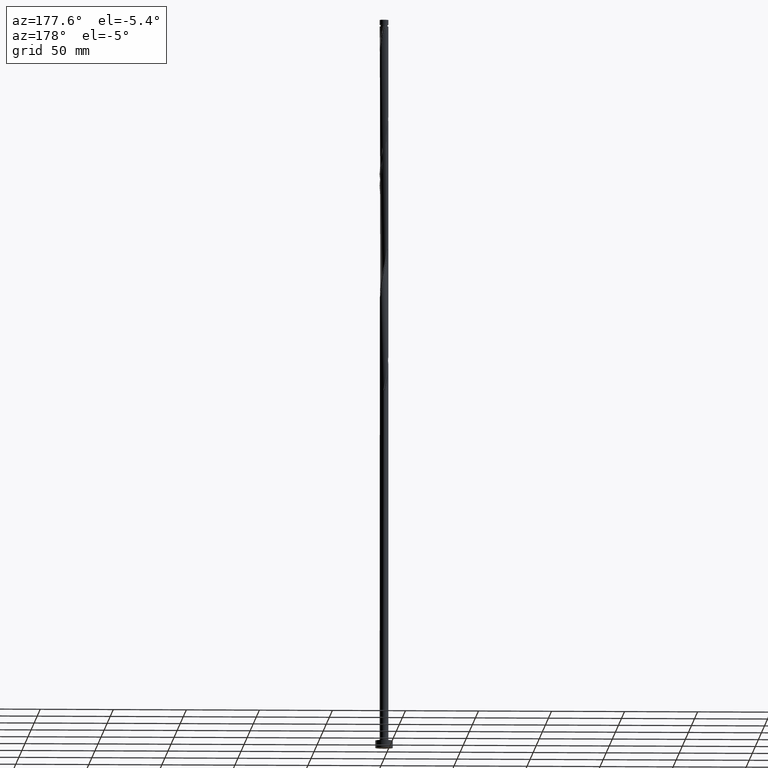
[diagram: clean part render]
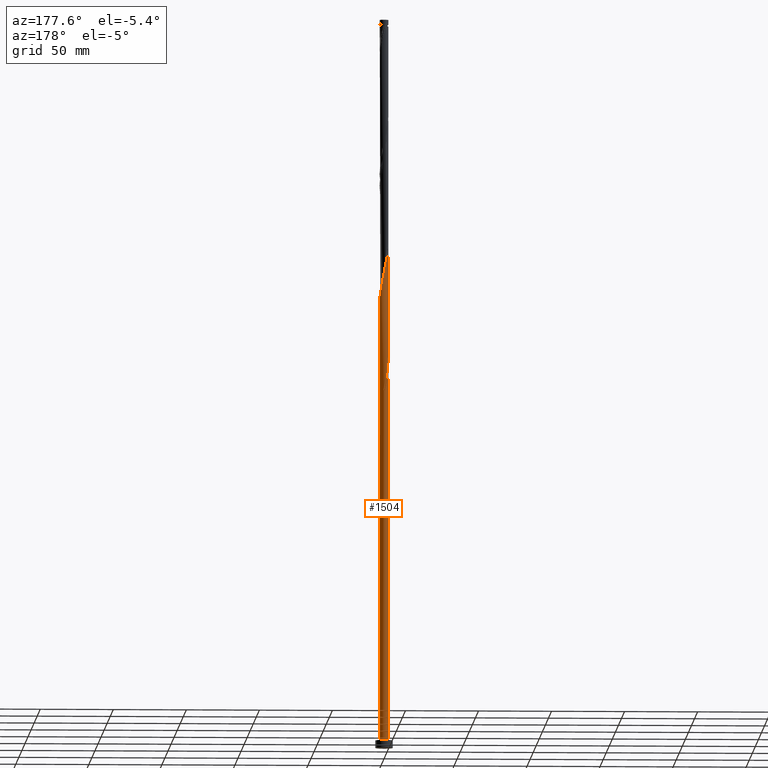
[diagram: same view with one face highlighted and labeled with its STEP entity id]
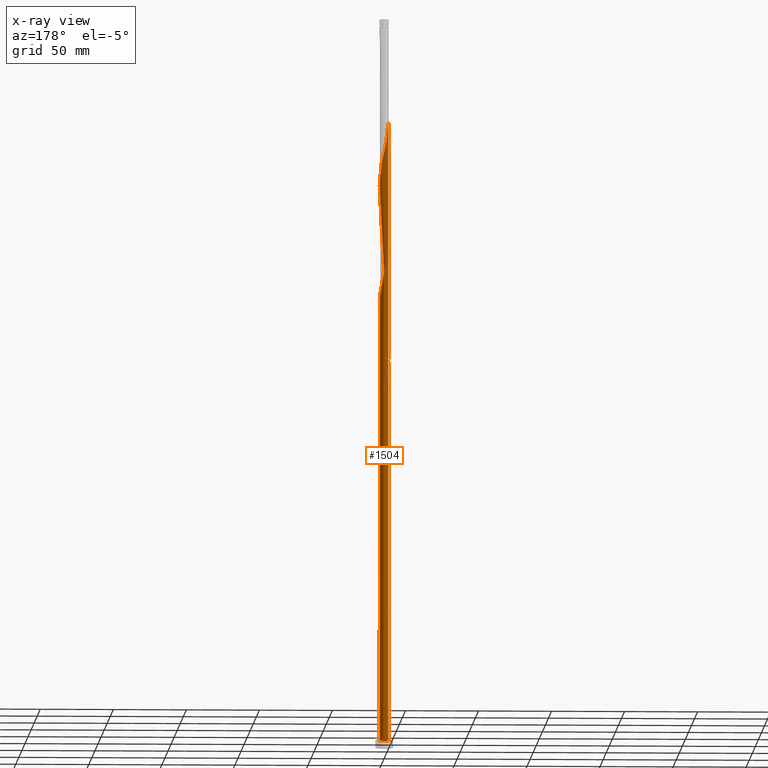
[diagram: x-ray of the same camera — body ghosted, the highlighted face saturated]
A machine part, auxiliary view. The second image highlights one B-rep face of the part: STEP entity #1504.
The next image is the same camera in x-ray: the body ghosted, the highlighted face saturated — about 0% of this face is hidden behind the body in this view.
In plain terms, the highlighted cylindrical surface (bore or boss wall) has radius 3 mm, axis along (-0, -0, -1).
Its self-contained STEP definition (entity closure, byte-faithful):
#2 = CARTESIAN_POINT ( 'NONE',  ( -2.129757576223803905, 2.112849418798542711, 419.9851471103912104 ) ) ;
#9 = ORIENTED_EDGE ( 'NONE', *, *, #1571, .F. ) ;
#11 = CARTESIAN_POINT ( 'NONE',  ( -2.881201374597971210, 0.8865571881340400529, 265.0372304437244679 ) ) ;
#15 = CARTESIAN_POINT ( 'NONE',  ( -0.5969924622639765088, 2.940000000000003499, 412.1726471103912104 ) ) ;
#25 = CARTESIAN_POINT ( 'NONE',  ( -3.000000000000000444, 0.000000000000000000, 5.000000000000000000 ) ) ;
#29 = CARTESIAN_POINT ( 'NONE',  ( -2.944664950138452308, 0.5735401742041599249, 427.7976471103913241 ) ) ;
#54 = CARTESIAN_POINT ( 'NONE',  ( -2.501031355072564466, 1.656756518304340009, 255.9226471103912104 ) ) ;
#60 = CIRCLE ( 'NONE', #1425, 3.000000000000000444 ) ;
#66 = CARTESIAN_POINT ( 'NONE',  ( 2.664207629581488046, -1.410426430302974543, 298.8913971103913241 ) ) ;
#78 = CARTESIAN_POINT ( 'NONE',  ( -0.5735401742041602580, -2.944664950138452308, 281.9643137770579528 ) ) ;
#89 = CARTESIAN_POINT ( 'NONE',  ( -2.112849418798542711, -2.129757576223803017, 274.1518137770580097 ) ) ;
#104 = CARTESIAN_POINT ( 'NONE',  ( -3.000000000000005773, 5.125532341002957811E-16, 263.6824501323943082 ) ) ;
#114 = CARTESIAN_POINT ( 'NONE',  ( -0.8635643575599506461, -2.888176173499371391, 363.9955637770578392 ) ) ;
#124 = CARTESIAN_POINT ( 'NONE',  ( -1.410426430302972545, -2.664207629581488934, 361.3913971103912104 ) ) ;
#135 = CARTESIAN_POINT ( 'NONE',  ( -2.322612231291377949, -1.921660071883966925, 356.1830637770578960 ) ) ;
#146 = CARTESIAN_POINT ( 'NONE',  ( 0.000000000000000000, 0.000000000000000000, 5.000000000000000000 ) ) ;
#149 = CARTESIAN_POINT ( 'NONE',  ( 2.767041272681220576, 1.159086966227608206, 393.9434804437245248 ) ) ;
#152 = EDGE_CURVE ( 'NONE', #819, #563, #1228, .T. ) ;
#155 = CARTESIAN_POINT ( 'NONE',  ( 0.01195587277277267504, 2.999976176089777624, 248.1101471103912104 ) ) ;
#158 = CARTESIAN_POINT ( 'NONE',  ( 1.903086606305706585, 2.337855080563641330, 400.4538971103912104 ) ) ;
#164 = DIRECTION ( 'NONE',  ( 1.000000000000000000, 0.000000000000000000, 0.000000000000000000 ) ) ;
#172 = CARTESIAN_POINT ( 'NONE',  ( 0.000000000000000000, 0.000000000000000000, 5.000000000000000000 ) ) ;
#192 = CARTESIAN_POINT ( 'NONE',  ( -0.8865571881340406080, 2.881201374597975651, 246.8080637770578392 ) ) ;
#194 = CARTESIAN_POINT ( 'NONE',  ( 0.000000000000000000, 0.000000000000000000, 245.5059804437245816 ) ) ;
#196 = CARTESIAN_POINT ( 'NONE',  ( -1.431616744321174917, 2.652881170764465057, 416.0788971103912104 ) ) ;
#222 = CARTESIAN_POINT ( 'NONE',  ( 2.487746701027921503, 1.676638408102571809, 313.2143137770578392 ) ) ;
#232 = CARTESIAN_POINT ( 'NONE',  ( -2.999976176089782065, -0.01195587277277204014, 263.7351471103911535 ) ) ;
#240 = CARTESIAN_POINT ( 'NONE',  ( 2.337855080563640442, -1.903086606305707473, 296.2872304437245816 ) ) ;
#248 = CARTESIAN_POINT ( 'NONE',  ( 1.676638408102570921, -2.487746701027922835, 292.3809804437245816 ) ) ;
#258 = CARTESIAN_POINT ( 'NONE',  ( 2.501031355072564466, -1.656756518304340453, 297.5893137770579528 ) ) ;
#265 = CARTESIAN_POINT ( 'NONE',  ( 0.2835159908483700919, 3.001153726777532338, 408.2663971103912104 ) ) ;
#267 = EDGE_CURVE ( 'NONE', #563, #819, #1650, .T. ) ;
#273 = CARTESIAN_POINT ( 'NONE',  ( 0.8635643575599509791, 2.888176173499371391, 405.6622304437244679 ) ) ;
#281 = CARTESIAN_POINT ( 'NONE',  ( -2.501031355072564466, 1.656756518304340009, 339.2559804437245248 ) ) ;
#295 = CARTESIAN_POINT ( 'NONE',  ( -2.998798625402030904, -0.3074277363939134089, 348.3705637770578960 ) ) ;
#304 = CARTESIAN_POINT ( 'NONE',  ( -3.001153726777532338, 0.2835159908483694813, 345.7663971103912104 ) ) ;
#307 = EDGE_CURVE ( 'NONE', #1739, #1446, #1634, .T. ) ;
#328 = CARTESIAN_POINT ( 'NONE',  ( -3.000000000000005773, 5.125532341002957811E-16, 263.6824501323943082 ) ) ;
#330 = CARTESIAN_POINT ( 'NONE',  ( -2.652881170764462837, 1.431616744321173140, 262.4330637770578960 ) ) ;
#333 = CARTESIAN_POINT ( 'NONE',  ( -1.676638408102570921, 2.487746701027922391, 417.3809804437245816 ) ) ;
#338 = CARTESIAN_POINT ( 'NONE',  ( -2.664207629581488490, 1.410426430302972545, 257.2247304437244679 ) ) ;
#340 = CARTESIAN_POINT ( 'NONE',  ( -2.999976176089777624, 0.01195587277277287974, 268.9434804437245816 ) ) ;
#346 = CARTESIAN_POINT ( 'NONE',  ( -3.000000000000005773, 0.2894394447869395592, 262.4064700269783543 ) ) ;
#374 = CARTESIAN_POINT ( 'NONE',  ( -1.410426430302972545, -2.664207629581488934, 278.0580637770578960 ) ) ;
#383 = CARTESIAN_POINT ( 'NONE',  ( -3.000000000000000444, 0.000000000000000000, 500.0000000000000000 ) ) ;
#394 = CARTESIAN_POINT ( 'NONE',  ( 1.431616744321174695, -2.652881170764466390, 291.0788971103912104 ) ) ;
#403 = CARTESIAN_POINT ( 'NONE',  ( -1.903086606305707251, -2.337855080563641330, 275.4538971103911535 ) ) ;
#410 = CARTESIAN_POINT ( 'NONE',  ( 2.129757576223803017, -2.112849418798543155, 294.9851471103912672 ) ) ;
#419 = CARTESIAN_POINT ( 'NONE',  ( -2.888176173499371391, 0.8635643575599506461, 343.1622304437244679 ) ) ;
#425 = CARTESIAN_POINT ( 'NONE',  ( -3.000000000000000888, 3.476042842171119903E-16, 268.9961774217214838 ) ) ;
#428 = CARTESIAN_POINT ( 'NONE',  ( -2.940000000000003499, -0.5969924622639770639, 349.6726471103911535 ) ) ;
#439 = CARTESIAN_POINT ( 'NONE',  ( -0.8865571881340406080, 2.881201374597975651, 330.1413971103913241 ) ) ;
#445 = CARTESIAN_POINT ( 'NONE',  ( -0.2835159908483687041, 3.001153726777527009, 249.4122304437245532 ) ) ;
#448 = CARTESIAN_POINT ( 'NONE',  ( -1.431616744321174917, 2.652881170764465057, 332.7455637770578392 ) ) ;
#459 = CARTESIAN_POINT ( 'NONE',  ( -2.112849418798542711, -2.129757576223803017, 357.4851471103913241 ) ) ;
#464 = VERTEX_POINT ( 'NONE', #1187 ) ;
#466 = CARTESIAN_POINT ( 'NONE',  ( -1.136995393931459208, 2.776191901540426610, 253.3184804437244679 ) ) ;
#476 = CARTESIAN_POINT ( 'NONE',  ( -2.129757576223803905, 2.112849418798542711, 253.3184804437245816 ) ) ;
#480 = DIRECTION ( 'NONE',  ( -5.135813185032626372E-30, -2.312964634635743213E-14, -1.000000000000000000 ) ) ;
#489 = AXIS2_PLACEMENT_3D ( 'NONE', #1426, #1451, #1156 ) ;
#493 = CARTESIAN_POINT ( 'NONE',  ( -2.337855080563641330, 1.903086606305707251, 421.2872304437244111 ) ) ;
#513 = CARTESIAN_POINT ( 'NONE',  ( -3.000000000000005773, 5.125532341002957811E-16, 263.6824501323943082 ) ) ;
#523 = CARTESIAN_POINT ( 'NONE',  ( -2.881201374597975651, -0.8865571881340409410, 267.6413971103912104 ) ) ;
#531 = CARTESIAN_POINT ( 'NONE',  ( 2.112849418798543599, 2.129757576223803017, 315.8184804437245248 ) ) ;
#536 =( BOUNDED_CURVE ( )  B_SPLINE_CURVE ( 2, ( #104, #1770, #232, #705, #1166, #523, #677, #1434, #991, #1618, #89, #403, #1744, #374, #1914, #838, #78, #1306, #1000, #687, #1922, #1010, #1128, #394, #248, #1609, #410, #240, #258, #66, #698, #983, #1298, #856, #864, #1020, #540, #1148, #1460, #1280, #222, #1289, #531, #715, #1140, #1314, #826, #847, #1754, #1443, #1817, #1788, #1196, #439, #1173, #448, #1057, #1491, #1667, #740, #281, #1470, #1938, #419, #1807, #304, #1186, #295, #428, #1649, #1049, #913, #1040, #135, #459, #880, #1480, #124, #1976, #114, #732, #602, #1640, #905, #610, #872, #1206, #1356, #1334, #1344, #1658, #1947, #567, #1511, #1501, #1956, #1215, #579, #723, #591, #1798, #894, #149, #1322, #1030, #753, #1967, #158, #765, #1368, #1827, #273, #1628, #265, #621, #651, #15, #1696, #1223, #196, #333, #921, #2, #493, #1377, #1837, #1677, #939, #29, #1563, #1542 ),
 .UNSPECIFIED., .F., .T. ) 
 B_SPLINE_CURVE_WITH_KNOTS ( ( 3, 2, 2, 2, 2, 2, 2, 2, 2, 2, 2, 2, 2, 2, 2, 2, 2, 2, 2, 2, 2, 2, 2, 2, 2, 2, 2, 2, 2, 2, 2, 2, 2, 2, 2, 2, 2, 2, 2, 2, 2, 2, 2, 2, 2, 2, 2, 2, 2, 2, 2, 2, 2, 2, 2, 2, 2, 2, 2, 2, 2, 2, 2, 2, 2, 3 ),
 ( 0.05452869021808727512, 0.05468750000000000000, 0.06250000000000000000, 0.07031250000000000000, 0.07812500000000000000, 0.08593750000000000000, 0.09375000000000000000, 0.1015625000000000000, 0.1093750000000000000, 0.1171875000000000000, 0.1250000000000000000, 0.1328125000000000000, 0.1406250000000000000, 0.1484375000000000000, 0.1562500000000000000, 0.1640625000000000000, 0.1718750000000000000, 0.1796875000000000000, 0.1875000000000000000, 0.1953125000000000000, 0.2031250000000000000, 0.2109375000000000000, 0.2187500000000000000, 0.2265625000000000000, 0.2343750000000000000, 0.2421875000000000000, 0.2500000000000000000, 0.2578125000000000000, 0.2656250000000000000, 0.2734375000000000000, 0.2812500000000000000, 0.2890625000000000000, 0.2968750000000000000, 0.3046875000000000000, 0.3125000000000000000, 0.3203125000000000000, 0.3281250000000000000, 0.3359375000000000000, 0.3437500000000000000, 0.3515625000000000000, 0.3593750000000000000, 0.3671875000000000000, 0.3750000000000000000, 0.3828125000000000000, 0.3906250000000000000, 0.3984375000000000000, 0.4062500000000000000, 0.4140625000000000000, 0.4218750000000000000, 0.4296875000000000000, 0.4375000000000000000, 0.4453125000000000000, 0.4531250000000000000, 0.4609375000000000000, 0.4687500000000000000, 0.4765625000000000000, 0.4843750000000000000, 0.4921875000000000000, 0.5000000000000000000, 0.5078125000000000000, 0.5156250000000000000, 0.5234375000000000000, 0.5312500000000000000, 0.5390625000000000000, 0.5468750000000000000, 0.5545286902180873723 ),
 .UNSPECIFIED. ) 
 CURVE ( )  GEOMETRIC_REPRESENTATION_ITEM ( )  RATIONAL_B_SPLINE_CURVE ( ( 0.9089165573359835326, 0.9090019243628882917, 0.9090909090909801149, 0.9047133878838859999, 0.9090909090909801149, 0.9047133878838859999, 0.9090909090909801149, 0.9047133878838859999, 0.9090909090909801149, 0.9047133878838859999, 0.9090909090909801149, 0.9047133878838859999, 0.9090909090909801149, 0.9047133878838859999, 0.9090909090909801149, 0.9047133878838859999, 0.9090909090909801149, 0.9047133878838859999, 0.9090909090909801149, 0.9047133878838859999, 0.9090909090909801149, 0.9047133878838859999, 0.9090909090909801149, 0.9047133878838859999, 0.9090909090909801149, 0.9047133878838859999, 0.9090909090909801149, 0.9047133878838859999, 0.9090909090909801149, 0.9047133878838859999, 0.9090909090909801149, 0.9047133878838859999, 0.9090909090909801149, 0.9047133878838859999, 0.9090909090909801149, 0.9047133878838859999, 0.9090909090909801149, 0.9047133878838859999, 0.9090909090909801149, 0.9047133878838859999, 0.9090909090909801149, 0.9047133878838859999, 0.9090909090909801149, 0.9047133878838859999, 0.9090909090909801149, 0.9047133878838859999, 0.9090909090909801149, 0.9047133878838859999, 0.9090909090909801149, 0.9047133878838859999, 0.9090909090909801149, 0.9047133878838859999, 0.9090909090909801149, 0.9047133878838859999, 0.9090909090909801149, 0.9047133878838859999, 0.9090909090909801149, 0.9047133878838859999, 0.9090909090909801149, 0.9047133878838859999, 0.9090909090909801149, 0.9047133878838859999, 0.9090909090909801149, 0.9047133878838859999, 0.9090909090909801149, 0.9047133878838859999, 0.9090909090909801149, 0.9047133878838859999, 0.9090909090909801149, 0.9047133878838859999, 0.9090909090909801149, 0.9047133878838859999, 0.9090909090909801149, 0.9047133878838859999, 0.9090909090909801149, 0.9047133878838859999, 0.9090909090909801149, 0.9047133878838859999, 0.9090909090909801149, 0.9047133878838859999, 0.9090909090909801149, 0.9047133878838859999, 0.9090909090909801149, 0.9047133878838859999, 0.9090909090909801149, 0.9047133878838859999, 0.9090909090909801149, 0.9047133878838859999, 0.9090909090909801149, 0.9047133878838859999, 0.9090909090909801149, 0.9047133878838859999, 0.9090909090909801149, 0.9047133878838859999, 0.9090909090909801149, 0.9047133878838859999, 0.9090909090909801149, 0.9047133878838859999, 0.9090909090909801149, 0.9047133878838859999, 0.9090909090909801149, 0.9047133878838859999, 0.9090909090909801149, 0.9047133878838859999, 0.9090909090909801149, 0.9047133878838859999, 0.9090909090909801149, 0.9047133878838859999, 0.9090909090909801149, 0.9047133878838859999, 0.9090909090909801149, 0.9047133878838859999, 0.9090909090909801149, 0.9047133878838859999, 0.9090909090909801149, 0.9047133878838859999, 0.9090909090909801149, 0.9047133878838859999, 0.9090909090909801149, 0.9047133878838859999, 0.9090909090909801149, 0.9047133878838859999, 0.9090909090909801149, 0.9047133878838859999, 0.9090909090909801149, 0.9047133878838859999, 0.9090909090909801149, 0.9047133878838859999, 0.9090909090909801149, 0.9048023726119777121, 0.9089165573359837547 ) ) 
 REPRESENTATION_ITEM ( '' )  );
#540 = CARTESIAN_POINT ( 'NONE',  ( 2.940000000000003499, 0.5969924622639767309, 308.0059804437245248 ) ) ;
#563 = VERTEX_POINT ( 'NONE', #580 ) ;
#567 = CARTESIAN_POINT ( 'NONE',  ( 2.501031355072564466, -1.656756518304340453, 380.9226471103913241 ) ) ;
#579 = CARTESIAN_POINT ( 'NONE',  ( 3.001153726777532338, -0.2835159908483699254, 387.4330637770578960 ) ) ;
#580 = CARTESIAN_POINT ( 'NONE',  ( 3.000000000000000444, 0.000000000000000000, 5.000000000000000000 ) ) ;
#591 = CARTESIAN_POINT ( 'NONE',  ( 2.998798625402031792, 0.3074277363939145191, 390.0372304437245816 ) ) ;
#602 = CARTESIAN_POINT ( 'NONE',  ( -0.2835159908483697033, -3.001153726777531894, 366.5997304437245248 ) ) ;
#610 = CARTESIAN_POINT ( 'NONE',  ( 0.5969924622639770639, -2.940000000000003499, 370.5059804437244111 ) ) ;
#621 = CARTESIAN_POINT ( 'NONE',  ( -0.01195587277277076164, 2.999976176089782065, 409.5684804437245248 ) ) ;
#627 = DIRECTION ( 'NONE',  ( 0.000000000000000000, 1.000000000000000000, -2.775557561562891036E-14 ) ) ;
#649 = CARTESIAN_POINT ( 'NONE',  ( -2.112849418798538714, 2.129757576223801241, 258.5268137770578960 ) ) ;
#651 = CARTESIAN_POINT ( 'NONE',  ( -0.3074277363939144636, 2.998798625402031792, 410.8705637770578960 ) ) ;
#667 = CARTESIAN_POINT ( 'NONE',  ( -1.921660071883966481, 2.322612231291377949, 252.0163971103912104 ) ) ;
#670 = ORIENTED_EDGE ( 'NONE', *, *, #1526, .T. ) ;
#677 = CARTESIAN_POINT ( 'NONE',  ( -2.767041272681220576, -1.159086966227607762, 268.9434804437245248 ) ) ;
#687 = CARTESIAN_POINT ( 'NONE',  ( 0.3074277363939134089, -2.998798625402030904, 285.8705637770578960 ) ) ;
#691 = DIRECTION ( 'NONE',  ( -0.000000000000000000, -0.000000000000000000, -1.000000000000000000 ) ) ;
#698 = CARTESIAN_POINT ( 'NONE',  ( 2.776191901540430162, -1.136995393931461429, 300.1934804437244679 ) ) ;
#705 = CARTESIAN_POINT ( 'NONE',  ( -2.998798625402030904, -0.3074277363939134089, 265.0372304437245248 ) ) ;
#709 = ORIENTED_EDGE ( 'NONE', *, *, #916, .T. ) ;
#715 = CARTESIAN_POINT ( 'NONE',  ( 1.903086606305706585, 2.337855080563641330, 317.1205637770578392 ) ) ;
#723 = CARTESIAN_POINT ( 'NONE',  ( 2.999976176089782065, 0.01195587277277086920, 388.7351471103912104 ) ) ;
#732 = CARTESIAN_POINT ( 'NONE',  ( -0.5735401742041602580, -2.944664950138452308, 365.2976471103912104 ) ) ;
#740 = CARTESIAN_POINT ( 'NONE',  ( -2.337855080563641330, 1.903086606305707251, 337.9538971103912104 ) ) ;
#750 = DIRECTION ( 'NONE',  ( 0.000000000000000000, 0.000000000000000000, 1.000000000000000000 ) ) ;
#753 = CARTESIAN_POINT ( 'NONE',  ( 2.322612231291377949, 1.921660071883966481, 397.8497304437244679 ) ) ;
#761 = CARTESIAN_POINT ( 'NONE',  ( 0.3074277363939141861, 2.998798625402027351, 246.8080637770578676 ) ) ;
#765 = CARTESIAN_POINT ( 'NONE',  ( 1.656756518304340453, 2.501031355072563578, 401.7559804437245248 ) ) ;
#772 = CARTESIAN_POINT ( 'NONE',  ( -0.8635643575599485366, 2.888176173499367838, 252.0163971103912104 ) ) ;
#800 = CARTESIAN_POINT ( 'NONE',  ( -1.431616744321174917, 2.652881170764465057, 249.4122304437245532 ) ) ;
#803 = CARTESIAN_POINT ( 'NONE',  ( -2.322612231291373064, 1.921660071883964260, 259.8288971103912104 ) ) ;
#819 = VERTEX_POINT ( 'NONE', #25 ) ;
#826 = CARTESIAN_POINT ( 'NONE',  ( 1.136995393931461429, 2.776191901540430162, 321.0268137770579528 ) ) ;
#838 = CARTESIAN_POINT ( 'NONE',  ( -0.8635643575599506461, -2.888176173499371391, 280.6622304437245248 ) ) ;
#847 = CARTESIAN_POINT ( 'NONE',  ( 0.8635643575599509791, 2.888176173499371391, 322.3288971103911535 ) ) ;
#856 = CARTESIAN_POINT ( 'NONE',  ( 3.001153726777532338, -0.2835159908483699254, 304.0997304437244111 ) ) ;
#858 = DIRECTION ( 'NONE',  ( 0.000000000000000000, 0.000000000000000000, 1.000000000000000000 ) ) ;
#864 = CARTESIAN_POINT ( 'NONE',  ( 2.999976176089782065, 0.01195587277277086920, 305.4018137770579528 ) ) ;
#872 = CARTESIAN_POINT ( 'NONE',  ( 0.8865571881340406080, -2.881201374597975651, 371.8080637770578960 ) ) ;
#880 = CARTESIAN_POINT ( 'NONE',  ( -1.903086606305707251, -2.337855080563641330, 358.7872304437245248 ) ) ;
#894 = CARTESIAN_POINT ( 'NONE',  ( 2.881201374597976095, 0.8865571881340391647, 392.6413971103913241 ) ) ;
#905 = CARTESIAN_POINT ( 'NONE',  ( 0.3074277363939134089, -2.998798625402030904, 369.2038971103912104 ) ) ;
#913 = CARTESIAN_POINT ( 'NONE',  ( -2.652881170764466390, -1.431616744321174695, 353.5788971103911535 ) ) ;
#916 = EDGE_CURVE ( 'NONE', #1739, #1557, #60, .T. ) ;
#919 = CARTESIAN_POINT ( 'NONE',  ( -3.000000000000000888, 3.476042842171119903E-16, 268.9961774217214838 ) ) ;
#921 = CARTESIAN_POINT ( 'NONE',  ( -1.921660071883966481, 2.322612231291377949, 418.6830637770579528 ) ) ;
#936 = CARTESIAN_POINT ( 'NONE',  ( -2.487746701027916618, 1.676638408102568700, 261.1309804437244679 ) ) ;
#939 = CARTESIAN_POINT ( 'NONE',  ( -2.888176173499371391, 0.8635643575599506461, 426.4955637770577823 ) ) ;
#943 = ORIENTED_EDGE ( 'NONE', *, *, #1526, .F. ) ;
#946 = CARTESIAN_POINT ( 'NONE',  ( -2.939999999999999059, 0.5969924622639770639, 266.3393137770578960 ) ) ;
#947 = AXIS2_PLACEMENT_3D ( 'NONE', #172, #858, #1916 ) ;
#983 = CARTESIAN_POINT ( 'NONE',  ( 2.888176173499371391, -0.8635643575599509791, 301.4955637770578392 ) ) ;
#991 = CARTESIAN_POINT ( 'NONE',  ( -2.487746701027922391, -1.676638408102570921, 271.5476471103912104 ) ) ;
#1000 = CARTESIAN_POINT ( 'NONE',  ( 0.01195587277277118492, -2.999976176089782065, 284.5684804437245816 ) ) ;
#1010 = CARTESIAN_POINT ( 'NONE',  ( 0.8865571881340406080, -2.881201374597975651, 288.4747304437246385 ) ) ;
#1011 = EDGE_CURVE ( 'NONE', #1908, #1557, #1774, .T. ) ;
#1020 = CARTESIAN_POINT ( 'NONE',  ( 2.998798625402031792, 0.3074277363939145191, 306.7038971103910967 ) ) ;
#1030 = CARTESIAN_POINT ( 'NONE',  ( 2.487746701027921503, 1.676638408102571809, 396.5476471103912104 ) ) ;
#1040 = CARTESIAN_POINT ( 'NONE',  ( -2.487746701027922391, -1.676638408102570921, 354.8809804437245248 ) ) ;
#1049 = CARTESIAN_POINT ( 'NONE',  ( -2.767041272681220576, -1.159086966227607762, 352.2768137770579528 ) ) ;
#1057 = CARTESIAN_POINT ( 'NONE',  ( -1.676638408102570921, 2.487746701027922391, 334.0476471103912672 ) ) ;
#1068 = ORIENTED_EDGE ( 'NONE', *, *, #1317, .F. ) ;
#1098 = CARTESIAN_POINT ( 'NONE',  ( -1.676638408102570921, 2.487746701027922391, 250.7143137770578960 ) ) ;
#1101 = EDGE_LOOP ( 'NONE', ( #1068, #9, #670, #1561, #1568, #943, #1134, #709, #1284 ) ) ;
#1128 = CARTESIAN_POINT ( 'NONE',  ( 1.159086966227608206, -2.767041272681220576, 289.7768137770578392 ) ) ;
#1134 = ORIENTED_EDGE ( 'NONE', *, *, #307, .F. ) ;
#1137 = AXIS2_PLACEMENT_3D ( 'NONE', #146, #750, #164 ) ;
#1140 = CARTESIAN_POINT ( 'NONE',  ( 1.656756518304340453, 2.501031355072563578, 318.4226471103912104 ) ) ;
#1148 = CARTESIAN_POINT ( 'NONE',  ( 2.881201374597976095, 0.8865571881340391647, 309.3080637770578960 ) ) ;
#1156 = DIRECTION ( 'NONE',  ( -1.000000000000000000, 0.000000000000000000, 0.000000000000000000 ) ) ;
#1166 = CARTESIAN_POINT ( 'NONE',  ( -2.940000000000003499, -0.5969924622639770639, 266.3393137770578960 ) ) ;
#1173 = CARTESIAN_POINT ( 'NONE',  ( -1.159086966227607762, 2.767041272681220576, 331.4434804437245248 ) ) ;
#1186 = CARTESIAN_POINT ( 'NONE',  ( -2.999976176089782065, -0.01195587277277204014, 347.0684804437244679 ) ) ;
#1187 = CARTESIAN_POINT ( 'NONE',  ( -3.000000000000005773, 5.125532341002957811E-16, 430.3491167990609938 ) ) ;
#1196 = CARTESIAN_POINT ( 'NONE',  ( -0.5969924622639765088, 2.940000000000003499, 328.8393137770578960 ) ) ;
#1206 = CARTESIAN_POINT ( 'NONE',  ( 1.159086966227608206, -2.767041272681220576, 373.1101471103912104 ) ) ;
#1215 = CARTESIAN_POINT ( 'NONE',  ( 2.944664950138452308, -0.5735401742041619233, 386.1309804437245248 ) ) ;
#1223 = CARTESIAN_POINT ( 'NONE',  ( -1.159086966227607762, 2.767041272681220576, 414.7768137770579528 ) ) ;
#1228 = CIRCLE ( 'NONE', #1137, 3.000000000000000444 ) ;
#1240 = CARTESIAN_POINT ( 'NONE',  ( -3.000000000000000444, 0.005977960122775802590, 268.9698238672041839 ) ) ;
#1247 = CARTESIAN_POINT ( 'NONE',  ( -1.159086966227607762, 2.767041272681220576, 248.1101471103912672 ) ) ;
#1250 = CARTESIAN_POINT ( 'NONE',  ( -0.5735401742041585926, 2.944664950138447423, 250.7143137770578392 ) ) ;
#1258 = CARTESIAN_POINT ( 'NONE',  ( -2.944664950138452308, 0.5735401742041599249, 261.1309804437244679 ) ) ;
#1280 = CARTESIAN_POINT ( 'NONE',  ( 2.652881170764466390, 1.431616744321174250, 311.9122304437245248 ) ) ;
#1284 = ORIENTED_EDGE ( 'NONE', *, *, #1011, .F. ) ;
#1289 = CARTESIAN_POINT ( 'NONE',  ( 2.322612231291377949, 1.921660071883966481, 314.5163971103910967 ) ) ;
#1298 = CARTESIAN_POINT ( 'NONE',  ( 2.944664950138452308, -0.5735401742041619233, 302.7976471103912104 ) ) ;
#1306 = CARTESIAN_POINT ( 'NONE',  ( -0.2835159908483697033, -3.001153726777531894, 283.2663971103911535 ) ) ;
#1314 = CARTESIAN_POINT ( 'NONE',  ( 1.410426430302974543, 2.664207629581488046, 319.7247304437246385 ) ) ;
#1317 = EDGE_CURVE ( 'NONE', #464, #1908, #1907, .T. ) ;
#1322 = CARTESIAN_POINT ( 'NONE',  ( 2.652881170764466390, 1.431616744321174250, 395.2455637770578392 ) ) ;
#1334 = CARTESIAN_POINT ( 'NONE',  ( 1.676638408102570921, -2.487746701027922835, 375.7143137770579528 ) ) ;
#1344 = CARTESIAN_POINT ( 'NONE',  ( 1.921660071883966481, -2.322612231291377949, 377.0163971103912672 ) ) ;
#1356 = CARTESIAN_POINT ( 'NONE',  ( 1.431616744321174695, -2.652881170764466390, 374.4122304437244111 ) ) ;
#1368 = CARTESIAN_POINT ( 'NONE',  ( 1.410426430302974543, 2.664207629581488046, 403.0580637770580665 ) ) ;
#1373 = CARTESIAN_POINT ( 'NONE',  ( 0.5969924622639777301, 2.939999999999999059, 245.5059804437245248 ) ) ;
#1377 = CARTESIAN_POINT ( 'NONE',  ( -2.501031355072564466, 1.656756518304340009, 422.5893137770579528 ) ) ;
#1382 = CARTESIAN_POINT ( 'NONE',  ( -2.998798625402027351, 0.3074277363939139640, 267.6413971103912104 ) ) ;
#1400 = CARTESIAN_POINT ( 'NONE',  ( -1.656756518304337122, 2.501031355072560913, 255.9226471103912104 ) ) ;
#1425 = AXIS2_PLACEMENT_3D ( 'NONE', #194, #480, #627 ) ;
#1426 = CARTESIAN_POINT ( 'NONE',  ( 0.000000000000000000, 0.000000000000000000, 500.0000000000000000 ) ) ;
#1434 = CARTESIAN_POINT ( 'NONE',  ( -2.652881170764466390, -1.431616744321174695, 270.2455637770578392 ) ) ;
#1443 = CARTESIAN_POINT ( 'NONE',  ( 0.2835159908483700919, 3.001153726777532338, 324.9330637770578960 ) ) ;
#1446 = VERTEX_POINT ( 'NONE', #513 ) ;
#1451 = DIRECTION ( 'NONE',  ( -0.000000000000000000, -0.000000000000000000, -1.000000000000000000 ) ) ;
#1454 = CARTESIAN_POINT ( 'NONE',  ( -0.5969924622639765088, 2.940000000000003499, 245.5059804437245248 ) ) ;
#1460 = CARTESIAN_POINT ( 'NONE',  ( 2.767041272681220576, 1.159086966227608206, 310.6101471103912672 ) ) ;
#1465 = VECTOR ( 'NONE', #691, 1000.000000000000000 ) ;
#1470 = CARTESIAN_POINT ( 'NONE',  ( -2.664207629581488490, 1.410426430302972545, 340.5580637770579528 ) ) ;
#1480 = CARTESIAN_POINT ( 'NONE',  ( -1.656756518304340009, -2.501031355072564466, 360.0893137770578392 ) ) ;
#1491 = CARTESIAN_POINT ( 'NONE',  ( -1.921660071883966481, 2.322612231291377949, 335.3497304437244111 ) ) ;
#1501 = CARTESIAN_POINT ( 'NONE',  ( 2.776191901540430162, -1.136995393931461429, 383.5268137770578392 ) ) ;
#1504 = ADVANCED_FACE ( 'NONE', ( #1779 ), #1903, .T. ) ;
#1508 = CARTESIAN_POINT ( 'NONE',  ( -1.903086606305703476, 2.337855080563638221, 257.2247304437245248 ) ) ;
#1511 = CARTESIAN_POINT ( 'NONE',  ( 2.664207629581488046, -1.410426430302974543, 382.2247304437246385 ) ) ;
#1516 = CARTESIAN_POINT ( 'NONE',  ( -1.410426430302970546, 2.664207629581485381, 254.6205637770578960 ) ) ;
#1526 = EDGE_CURVE ( 'NONE', #1446, #819, #1931, .T. ) ;
#1542 = CARTESIAN_POINT ( 'NONE',  ( -3.000000000000005773, 5.125532341002957811E-16, 430.3491167990609938 ) ) ;
#1557 = VERTEX_POINT ( 'NONE', #1893 ) ;
#1561 = ORIENTED_EDGE ( 'NONE', *, *, #152, .T. ) ;
#1563 = CARTESIAN_POINT ( 'NONE',  ( -3.000000000000007105, 0.2894394447869359510, 429.0731366936450399 ) ) ;
#1568 = ORIENTED_EDGE ( 'NONE', *, *, #267, .T. ) ;
#1571 = EDGE_CURVE ( 'NONE', #1446, #464, #536, .T. ) ;
#1600 = DIRECTION ( 'NONE',  ( -0.000000000000000000, -0.000000000000000000, -1.000000000000000000 ) ) ;
#1609 = CARTESIAN_POINT ( 'NONE',  ( 1.921660071883966481, -2.322612231291377949, 293.6830637770578392 ) ) ;
#1618 = CARTESIAN_POINT ( 'NONE',  ( -2.322612231291377949, -1.921660071883966925, 272.8497304437245248 ) ) ;
#1628 = CARTESIAN_POINT ( 'NONE',  ( 0.5735401742041620343, 2.944664950138452308, 406.9643137770578960 ) ) ;
#1634 =( BOUNDED_CURVE ( )  B_SPLINE_CURVE ( 2, ( #1454, #192, #1247, #800, #1098, #667, #476, #1702, #54, #338, #1711, #1690, #1258, #346, #328 ),
 .UNSPECIFIED., .F., .T. ) 
 B_SPLINE_CURVE_WITH_KNOTS ( ( 3, 2, 2, 2, 2, 2, 2, 3 ),
 ( 0.000000000000000000, 0.007812500000000000000, 0.01562500000000000000, 0.02343750000000000347, 0.03125000000000000000, 0.03906250000000000000, 0.04687500000000000694, 0.05452869021808727512 ),
 .UNSPECIFIED. ) 
 CURVE ( )  GEOMETRIC_REPRESENTATION_ITEM ( )  RATIONAL_B_SPLINE_CURVE ( ( 0.9090909090909801149, 0.9047133878838859999, 0.9090909090909801149, 0.9047133878838859999, 0.9090909090909801149, 0.9047133878838859999, 0.9090909090909801149, 0.9047133878838859999, 0.9090909090909801149, 0.9047133878838859999, 0.9090909090909801149, 0.9047133878838859999, 0.9090909090909801149, 0.9048023726119778232, 0.9089165573359835326 ) ) 
 REPRESENTATION_ITEM ( '' )  );
#1640 = CARTESIAN_POINT ( 'NONE',  ( 0.01195587277277118492, -2.999976176089782065, 367.9018137770580097 ) ) ;
#1649 = CARTESIAN_POINT ( 'NONE',  ( -2.881201374597975651, -0.8865571881340409410, 350.9747304437246385 ) ) ;
#1650 = CIRCLE ( 'NONE', #947, 3.000000000000000444 ) ;
#1658 = CARTESIAN_POINT ( 'NONE',  ( 2.129757576223803017, -2.112849418798543155, 378.3184804437245816 ) ) ;
#1667 = CARTESIAN_POINT ( 'NONE',  ( -2.129757576223803905, 2.112849418798542711, 336.6518137770578960 ) ) ;
#1677 = CARTESIAN_POINT ( 'NONE',  ( -2.776191901540430162, 1.136995393931461429, 425.1934804437245248 ) ) ;
#1690 = CARTESIAN_POINT ( 'NONE',  ( -2.888176173499371391, 0.8635643575599506461, 259.8288971103912104 ) ) ;
#1692 = CARTESIAN_POINT ( 'NONE',  ( -2.767041272681216135, 1.159086966227606874, 263.7351471103911535 ) ) ;
#1696 = CARTESIAN_POINT ( 'NONE',  ( -0.8865571881340406080, 2.881201374597975651, 413.4747304437246385 ) ) ;
#1702 = CARTESIAN_POINT ( 'NONE',  ( -2.337855080563641330, 1.903086606305707251, 254.6205637770578960 ) ) ;
#1711 = CARTESIAN_POINT ( 'NONE',  ( -2.776191901540430162, 1.136995393931461429, 258.5268137770578960 ) ) ;
#1739 = VERTEX_POINT ( 'NONE', #1879 ) ;
#1744 = CARTESIAN_POINT ( 'NONE',  ( -1.656756518304340009, -2.501031355072564466, 276.7559804437245248 ) ) ;
#1754 = CARTESIAN_POINT ( 'NONE',  ( 0.5735401742041620343, 2.944664950138452308, 323.6309804437244679 ) ) ;
#1770 = CARTESIAN_POINT ( 'NONE',  ( -3.000000000000004885, -0.005977960122788010706, 263.7088036869115513 ) ) ;
#1774 =( BOUNDED_CURVE ( )  B_SPLINE_CURVE ( 2, ( #919, #1240, #340, #1382, #946, #11, #1692, #330, #936, #803, #649, #1508, #1400, #1516, #466, #772, #1250, #445, #155, #761, #1373 ),
 .UNSPECIFIED., .F., .T. ) 
 B_SPLINE_CURVE_WITH_KNOTS ( ( 3, 2, 2, 2, 2, 2, 2, 2, 2, 2, 3 ),
 ( 0.9295286902180869282, 0.9296875000000000000, 0.9375000000000000000, 0.9453125000000000000, 0.9531250000000000000, 0.9609375000000000000, 0.9687500000000000000, 0.9765625000000000000, 0.9843750000000000000, 0.9921875000000000000, 1.000000000000000000 ),
 .UNSPECIFIED. ) 
 CURVE ( )  GEOMETRIC_REPRESENTATION_ITEM ( )  RATIONAL_B_SPLINE_CURVE ( ( 0.9089165573359773154, 0.9090019243628821854, 0.9090909090909741197, 0.9047133878838800047, 0.9090909090909741197, 0.9047133878838800047, 0.9090909090909741197, 0.9047133878838800047, 0.9090909090909741197, 0.9047133878838800047, 0.9090909090909741197, 0.9047133878838800047, 0.9090909090909741197, 0.9047133878838800047, 0.9090909090909741197, 0.9047133878838800047, 0.9090909090909741197, 0.9047133878838800047, 0.9090909090909741197, 0.9047133878838800047, 0.9090909090909741197 ) ) 
 REPRESENTATION_ITEM ( '' )  );
#1779 = FACE_OUTER_BOUND ( 'NONE', #1101, .T. ) ;
#1788 = CARTESIAN_POINT ( 'NONE',  ( -0.3074277363939144636, 2.998798625402031792, 327.5372304437244111 ) ) ;
#1798 = CARTESIAN_POINT ( 'NONE',  ( 2.940000000000003499, 0.5969924622639767309, 391.3393137770578960 ) ) ;
#1807 = CARTESIAN_POINT ( 'NONE',  ( -2.944664950138452308, 0.5735401742041599249, 344.4643137770579528 ) ) ;
#1817 = CARTESIAN_POINT ( 'NONE',  ( -0.01195587277277076164, 2.999976176089782065, 326.2351471103910967 ) ) ;
#1827 = CARTESIAN_POINT ( 'NONE',  ( 1.136995393931461429, 2.776191901540430162, 404.3601471103912672 ) ) ;
#1837 = CARTESIAN_POINT ( 'NONE',  ( -2.664207629581488490, 1.410426430302972545, 423.8913971103912104 ) ) ;
#1856 = VECTOR ( 'NONE', #1600, 1000.000000000000000 ) ;
#1879 = CARTESIAN_POINT ( 'NONE',  ( -0.5969924622639766199, 2.940000000000003499, 245.5059804437245248 ) ) ;
#1886 = CARTESIAN_POINT ( 'NONE',  ( -3.000000000000000444, 0.000000000000000000, 500.0000000000000000 ) ) ;
#1893 = CARTESIAN_POINT ( 'NONE',  ( 0.5969924622639777301, 2.939999999999999059, 245.5059804437245248 ) ) ;
#1903 = CYLINDRICAL_SURFACE ( 'NONE', #489, 3.000000000000000444 ) ;
#1907 = LINE ( 'NONE', #1886, #1465 ) ;
#1908 = VERTEX_POINT ( 'NONE', #425 ) ;
#1914 = CARTESIAN_POINT ( 'NONE',  ( -1.136995393931461429, -2.776191901540430162, 279.3601471103912104 ) ) ;
#1916 = DIRECTION ( 'NONE',  ( 1.000000000000000000, 0.000000000000000000, 0.000000000000000000 ) ) ;
#1922 = CARTESIAN_POINT ( 'NONE',  ( 0.5969924622639770639, -2.940000000000003499, 287.1726471103913241 ) ) ;
#1931 = LINE ( 'NONE', #383, #1856 ) ;
#1938 = CARTESIAN_POINT ( 'NONE',  ( -2.776191901540430162, 1.136995393931461429, 341.8601471103912104 ) ) ;
#1947 = CARTESIAN_POINT ( 'NONE',  ( 2.337855080563640442, -1.903086606305707473, 379.6205637770578960 ) ) ;
#1956 = CARTESIAN_POINT ( 'NONE',  ( 2.888176173499371391, -0.8635643575599509791, 384.8288971103911535 ) ) ;
#1967 = CARTESIAN_POINT ( 'NONE',  ( 2.112849418798543599, 2.129757576223803017, 399.1518137770579528 ) ) ;
#1976 = CARTESIAN_POINT ( 'NONE',  ( -1.136995393931461429, -2.776191901540430162, 362.6934804437244679 ) ) ;